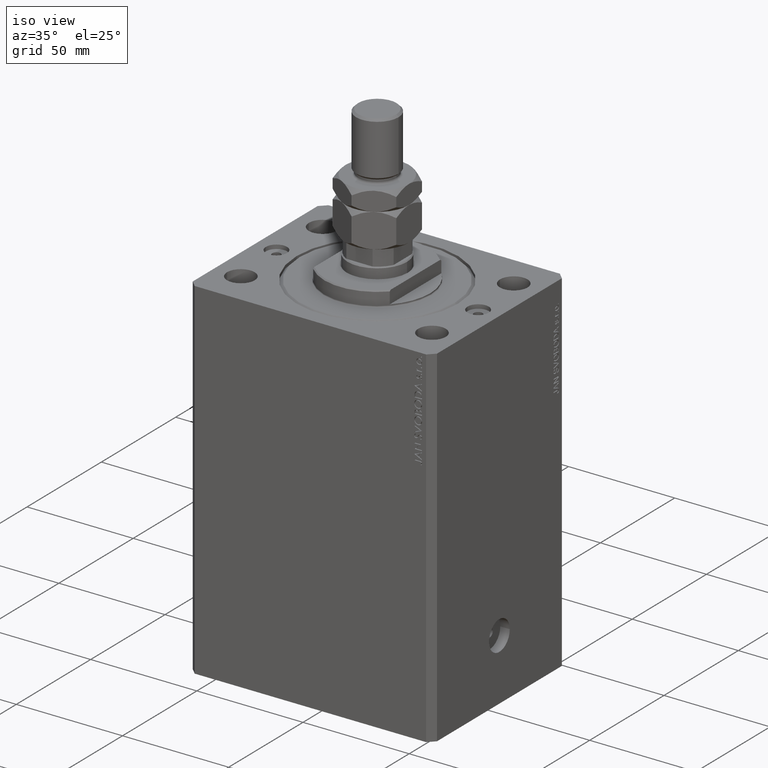
[diagram: clean part render]
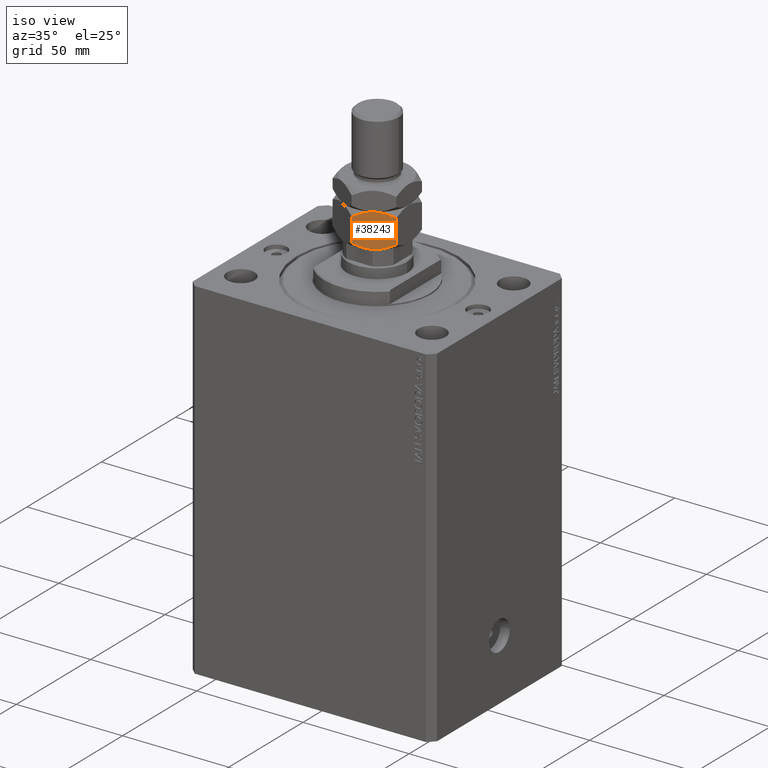
[diagram: same view with one face highlighted and labeled with its STEP entity id]
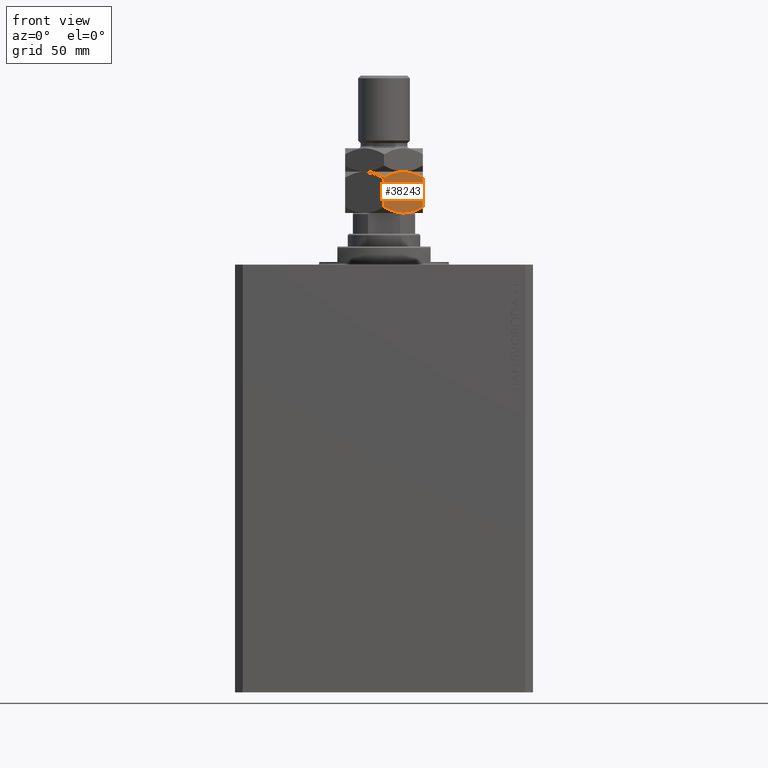
[diagram: same view with one face highlighted and labeled with its STEP entity id]
A machine part, iso view. The second image highlights one B-rep face of the part: STEP entity #38243.
A second angle (front view) of the same face is appended — the face is thin or edge-on in the first view.
In plain terms, the highlighted planar face has unit normal (-0.5, 0.866, 0).
Its self-contained STEP definition (entity closure, byte-faithful):
#499 = ORIENTED_EDGE ( 'NONE', *, *, #13750, .F. ) ;
#1977 = CARTESIAN_POINT ( 'NONE',  ( 15.00000000000000000, -8.660254037844389075, 16.00000000000000000 ) ) ;
#4069 = DIRECTION ( 'NONE',  ( -0.000000000000000000, -0.000000000000000000, -1.000000000000000000 ) ) ;
#4135 = CARTESIAN_POINT ( 'NONE',  ( 7.499999999999993783, -12.99038105676658006, 16.00000000000000000 ) ) ;
#4181 = EDGE_CURVE ( 'NONE', #33216, #21275, #6171, .T. ) ;
#5422 = ORIENTED_EDGE ( 'NONE', *, *, #14483, .F. ) ;
#5877 = CARTESIAN_POINT ( 'NONE',  ( 15.00000000000000000, -8.660254037844389075, 2.320508075688767047 ) ) ;
#6171 = LINE ( 'NONE', #1977, #24568 ) ;
#6941 = CARTESIAN_POINT ( 'NONE',  ( 4.913081180497406386, -14.48393933357810681, 0.2303299219392160313 ) ) ;
#7750 = CARTESIAN_POINT ( 'NONE',  ( 2.378834511187501111, -15.94708733029709791, 14.93551393225600066 ) ) ;
#7756 = CARTESIAN_POINT ( 'NONE',  ( 15.00000000000000000, -8.660254037844389075, 2.320508075688767047 ) ) ;
#8237 = CARTESIAN_POINT ( 'NONE',  ( 4.881674457977372761, -14.50207201327941320, 15.71619733805371411 ) ) ;
#8555 = VERTEX_POINT ( 'NONE', #9299 ) ;
#9299 = CARTESIAN_POINT ( 'NONE',  ( -2.796947266322166691E-15, -17.32050807568877104, 2.320508075688761718 ) ) ;
#9435 = CARTESIAN_POINT ( 'NONE',  ( 12.61607045183964360, -10.03661640420387080, 14.93952096862912171 ) ) ;
#10306 = CARTESIAN_POINT ( 'NONE',  ( 10.75222765045651308, -11.11270654730956586, 0.4475714085130263475 ) ) ;
#10647 = CARTESIAN_POINT ( 'NONE',  ( 7.499999999999994671, -12.99038105676658184, 0.000000000000000000 ) ) ;
#10791 = ORIENTED_EDGE ( 'NONE', *, *, #31964, .F. ) ;
#11036 = ORIENTED_EDGE ( 'NONE', *, *, #25594, .T. ) ;
#11088 = DIRECTION ( 'NONE',  ( -0.8660254037844388186, -0.4999999999999996669, 0.000000000000000000 ) ) ;
#11167 = EDGE_LOOP ( 'NONE', ( #5422, #36018, #48519, #499, #11036, #10791 ) ) ;
#11186 = EDGE_CURVE ( 'NONE', #25269, #33216, #19921, .T. ) ;
#11267 = CARTESIAN_POINT ( 'NONE',  ( 15.00000000000000000, -8.660254037844389075, 13.67949192431123961 ) ) ;
#11694 = CARTESIAN_POINT ( 'NONE',  ( 4.247772349543483372, -14.86805556622359425, 15.55242859148698109 ) ) ;
#13516 = CARTESIAN_POINT ( 'NONE',  ( 12.62116548881249756, -10.03367478323606754, 1.064486067744006892 ) ) ;
#13750 = EDGE_CURVE ( 'NONE', #37734, #25269, #23902, .T. ) ;
#14254 = CARTESIAN_POINT ( 'NONE',  ( 10.11832554202262102, -11.47869010025374870, 0.2838026619462938327 ) ) ;
#14483 = EDGE_CURVE ( 'NONE', #21275, #46757, #18026, .T. ) ;
#15695 = B_SPLINE_CURVE_WITH_KNOTS ( 'NONE', 3,
 ( #10647, #22502, #6941, #40768, #22009, #37063 ),
 .UNSPECIFIED., .F., .F.,
 ( 4, 2, 4 ),
 ( 0.008977392552884455937, 0.01343452311421657053, 0.01789165367554868685 ),
 .UNSPECIFIED. ) ;
#17036 = DIRECTION ( 'NONE',  ( -0.000000000000000000, -0.000000000000000000, -1.000000000000000000 ) ) ;
#18026 = B_SPLINE_CURVE_WITH_KNOTS ( 'NONE', 3,
 ( #5877, #20935, #13516, #10306, #14254, #47837, #35985, #21914 ),
 .UNSPECIFIED., .F., .F.,
 ( 4, 2, 2, 4 ),
 ( 2.544309033642853415E-07, 0.004488823491893907842, 0.006733108022389181456, 0.008977392552884455937 ),
 .UNSPECIFIED. ) ;
#18166 = AXIS2_PLACEMENT_3D ( 'NONE', #44912, #41215, #11088 ) ;
#18888 = CARTESIAN_POINT ( 'NONE',  ( -3.035766082959412415E-15, -17.32050807568877104, 16.00000000000000000 ) ) ;
#19921 = B_SPLINE_CURVE_WITH_KNOTS ( 'NONE', 3,
 ( #43761, #32148, #21542, #9435, #47212, #32879 ),
 .UNSPECIFIED., .F., .F.,
 ( 4, 2, 4 ),
 ( 0.008977392552884447263, 0.01343452311421656532, 0.01789165367554868338 ),
 .UNSPECIFIED. ) ;
#20935 = CARTESIAN_POINT ( 'NONE',  ( 13.82389157469335750, -9.339280553791367012, 1.641481559741792884 ) ) ;
#21275 = VERTEX_POINT ( 'NONE', #7756 ) ;
#21542 = CARTESIAN_POINT ( 'NONE',  ( 10.08691881950258917, -11.49682277995505331, 15.76967007806078591 ) ) ;
#21914 = CARTESIAN_POINT ( 'NONE',  ( 7.499999999999994671, -12.99038105676658184, 0.000000000000000000 ) ) ;
#22009 = CARTESIAN_POINT ( 'NONE',  ( 1.174746544192159625, -16.64226784216984711, 1.642267842169777836 ) ) ;
#22502 = CARTESIAN_POINT ( 'NONE',  ( 6.195449321423083688, -13.74356374221447119, -1.770863548392988866E-15 ) ) ;
#23307 = CARTESIAN_POINT ( 'NONE',  ( 6.176419610670694560, -13.75455055083996214, 15.94046462602530312 ) ) ;
#23902 = B_SPLINE_CURVE_WITH_KNOTS ( 'NONE', 3,
 ( #41572, #37628, #7750, #11694, #8237, #23307, #34887, #33914 ),
 .UNSPECIFIED., .F., .F.,
 ( 4, 2, 2, 4 ),
 ( 2.544309033646407248E-07, 0.004488823491893905240, 0.006733108022389175384, 0.008977392552884447263 ),
 .UNSPECIFIED. ) ;
#24568 = VECTOR ( 'NONE', #17036, 1000.000000000000000 ) ;
#25269 = VERTEX_POINT ( 'NONE', #4135 ) ;
#25594 = EDGE_CURVE ( 'NONE', #37734, #8555, #48280, .T. ) ;
#25900 = FACE_OUTER_BOUND ( 'NONE', #11167, .T. ) ;
#31964 = EDGE_CURVE ( 'NONE', #46757, #8555, #15695, .T. ) ;
#32148 = CARTESIAN_POINT ( 'NONE',  ( 8.804550678576907430, -12.23719837131869248, 16.00000000000000000 ) ) ;
#32879 = CARTESIAN_POINT ( 'NONE',  ( 15.00000000000000000, -8.660254037844389075, 13.67949192431123961 ) ) ;
#33216 = VERTEX_POINT ( 'NONE', #11267 ) ;
#33914 = CARTESIAN_POINT ( 'NONE',  ( 7.499999999999993783, -12.99038105676658006, 16.00000000000000000 ) ) ;
#34887 = CARTESIAN_POINT ( 'NONE',  ( 6.843123817691747490, -13.36962869744650284, 16.00000000000000711 ) ) ;
#35985 = CARTESIAN_POINT ( 'NONE',  ( 8.156876182308243628, -12.61113341608666083, -1.722865014715246890E-15 ) ) ;
#36018 = ORIENTED_EDGE ( 'NONE', *, *, #4181, .F. ) ;
#36771 = PLANE ( 'NONE',  #18166 ) ;
#37063 = CARTESIAN_POINT ( 'NONE',  ( -2.796947266322166691E-15, -17.32050807568877104, 2.320508075688761718 ) ) ;
#37628 = CARTESIAN_POINT ( 'NONE',  ( 1.176108425306638505, -16.64148155974179488, 14.35851844025821755 ) ) ;
#37734 = VERTEX_POINT ( 'NONE', #46236 ) ;
#38243 = ADVANCED_FACE ( 'NONE', ( #25900 ), #36771, .F. ) ;
#38937 = CARTESIAN_POINT ( 'NONE',  ( 7.499999999999994671, -12.99038105676658184, 0.000000000000000000 ) ) ;
#40005 = VECTOR ( 'NONE', #4069, 1000.000000000000000 ) ;
#40768 = CARTESIAN_POINT ( 'NONE',  ( 2.383929548160349299, -15.94414570932928576, 1.060479031370876957 ) ) ;
#41215 = DIRECTION ( 'NONE',  ( -0.4999999999999996669, 0.8660254037844388186, 0.000000000000000000 ) ) ;
#41572 = CARTESIAN_POINT ( 'NONE',  ( -3.416099238086855886E-15, -17.32050807568877104, 13.67949192431124317 ) ) ;
#43761 = CARTESIAN_POINT ( 'NONE',  ( 7.499999999999993783, -12.99038105676658006, 16.00000000000000000 ) ) ;
#44912 = CARTESIAN_POINT ( 'NONE',  ( -3.035766082959412415E-15, -17.32050807568877104, 16.00000000000000000 ) ) ;
#46236 = CARTESIAN_POINT ( 'NONE',  ( -3.416099238086855886E-15, -17.32050807568877104, 13.67949192431124317 ) ) ;
#46757 = VERTEX_POINT ( 'NONE', #38937 ) ;
#47212 = CARTESIAN_POINT ( 'NONE',  ( 13.82525345580783416, -9.338494271363316557, 14.35773215783021861 ) ) ;
#47837 = CARTESIAN_POINT ( 'NONE',  ( 8.823580389329300999, -12.22621156269320331, 0.05953537397470176629 ) ) ;
#48280 = LINE ( 'NONE', #18888, #40005 ) ;
#48519 = ORIENTED_EDGE ( 'NONE', *, *, #11186, .F. ) ;